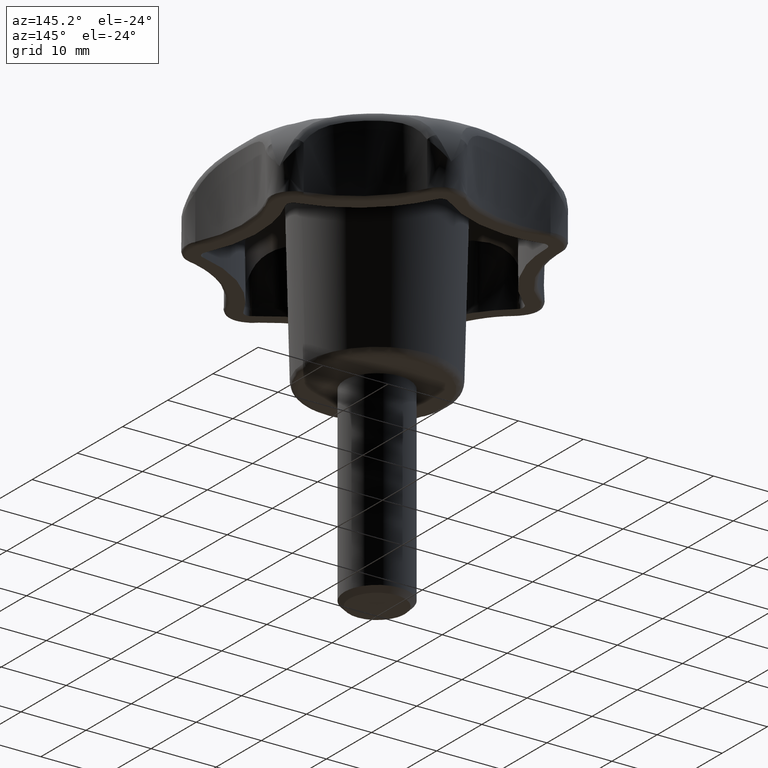
[diagram: clean part render]
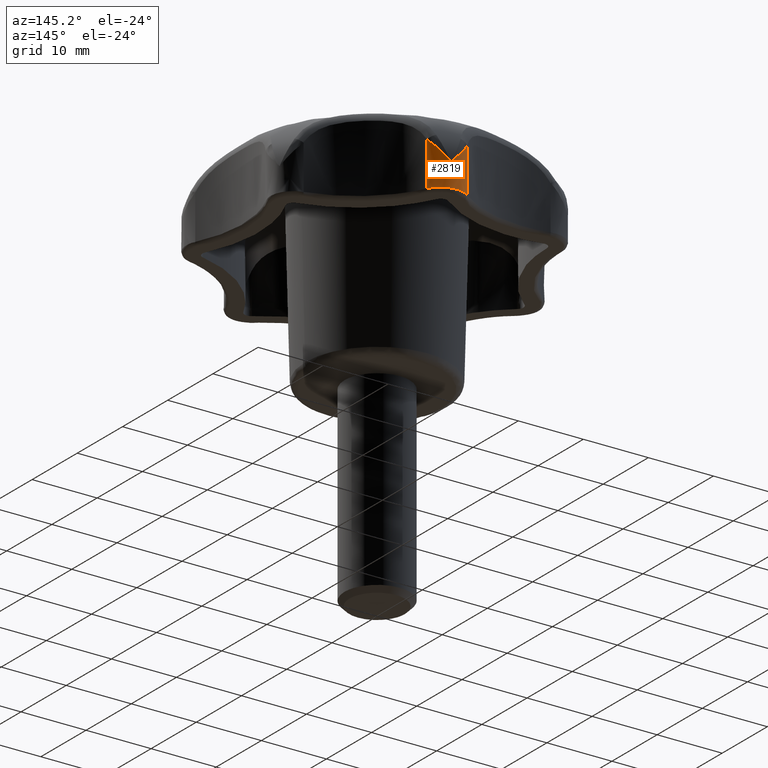
[diagram: same view with one face highlighted and labeled with its STEP entity id]
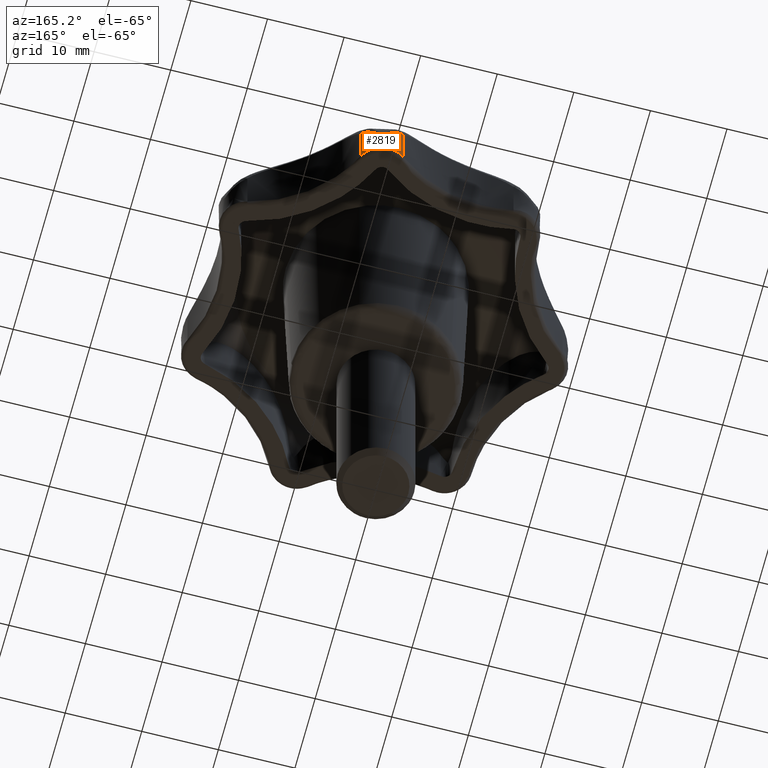
[diagram: same view with one face highlighted and labeled with its STEP entity id]
A machine part, auxiliary view. The second image highlights one B-rep face of the part: STEP entity #2819.
A second angle (auxiliary view) of the same face is appended — the face is thin or edge-on in the first view.
In plain terms, the highlighted face is a freeform B-spline surface patch.
Its self-contained STEP definition (entity closure, byte-faithful):
#1769=CARTESIAN_POINT('',(2.601986538722750,23.697360399521951,17.500000000000000));
#1770=VERTEX_POINT('',#1769);
#1781=CARTESIAN_POINT('',(7.937591030085770,22.479543102636299,17.500000000000000));
#1782=VERTEX_POINT('',#1781);
#1783=CARTESIAN_POINT('',(7.937591030085770,22.479543102636299,17.500000000000000));
#1784=CARTESIAN_POINT('',(7.809874285920594,22.744938801861291,17.499999999999961));
#1785=CARTESIAN_POINT('',(7.504796457622294,23.215450487545429,17.500000000000050));
#1786=CARTESIAN_POINT('',(6.918510721526632,23.769742143002979,17.500000000000000));
#1787=CARTESIAN_POINT('',(6.255233362051181,24.167312589810869,17.499999999999989));
#1788=CARTESIAN_POINT('',(5.583720452844248,24.391725097685740,17.499999999999979));
#1789=CARTESIAN_POINT('',(4.801797128210618,24.491027109026540,17.500000000000110));
#1790=CARTESIAN_POINT('',(4.045374229163240,24.416547279334502,17.499999999999989));
#1791=CARTESIAN_POINT('',(3.253921772806235,24.139478278780270,17.500000000000028));
#1792=CARTESIAN_POINT('',(2.819423822826879,23.870847091060309,17.499999999999901));
#1793=CARTESIAN_POINT('',(2.601986538722750,23.697360399521951,17.500000000000000));
#1794=B_SPLINE_CURVE_WITH_KNOTS('',3,(#1783,#1784,#1785,#1786,#1787,#1788,#1789,#1790,#1791,#1792,#1793),.UNSPECIFIED.,.F.,.U.,(4,1,1,1,1,1,1,1,4),(0.000000098999860,0.883564913585445,1.668987002221602,2.405319691033296,3.190683353082074,3.779751751514095,4.761515409871327,5.448750010219730,6.283235878183562),.UNSPECIFIED.);
#1795=EDGE_CURVE('',#1782,#1770,#1794,.T.);
#2344=CARTESIAN_POINT('',(2.601986538722750,23.697360399521951,24.301413341462101));
#2345=VERTEX_POINT('',#2344);
#2346=CARTESIAN_POINT('',(2.601986538722750,23.697360399521951,24.301413341462101));
#2347=CARTESIAN_POINT('',(2.601986538722750,23.697360399521951,17.500000000000000));
#2348=QUASI_UNIFORM_CURVE('',1,(#2346,#2347),.UNSPECIFIED.,.F.,.U.);
#2349=EDGE_CURVE('',#2345,#1770,#2348,.T.);
#2742=CARTESIAN_POINT('',(7.976262574885871,22.396476564718672,24.471449219359808));
#2743=CARTESIAN_POINT('',(7.976262574885871,22.396476564718672,17.325713769516010));
#2744=CARTESIAN_POINT('',(6.036259765057793,26.710301551746504,24.471449219359801));
#2745=CARTESIAN_POINT('',(6.036259765057793,26.710301551746504,17.325713769516014));
#2746=CARTESIAN_POINT('',(2.478130342247226,23.593827272793401,24.471449219359808));
#2747=CARTESIAN_POINT('',(2.478130342247226,23.593827272793401,17.325713769516010));
#2755=(BOUNDED_SURFACE()B_SPLINE_SURFACE(1,2,((#2742,#2744,#2746),(#2743,#2745,#2747)),.UNSPECIFIED.,.F.,.F.,.U.)B_SPLINE_SURFACE_WITH_KNOTS((2,2),(3,3),(0.0,7.145735449843798),(0.0,7.056580920545705),.UNSPECIFIED.)GEOMETRIC_REPRESENTATION_ITEM()RATIONAL_B_SPLINE_SURFACE(((1.0,0.594822786751341,1.0),(1.0,0.594822786751341,1.0)))REPRESENTATION_ITEM('')SURFACE());
#2756=CARTESIAN_POINT('',(7.937591030085770,22.479543102636299,24.301413872546149));
#2757=VERTEX_POINT('',#2756);
#2758=CARTESIAN_POINT('',(7.937591030085770,22.479543102636299,24.301413872546149));
#2759=CARTESIAN_POINT('',(7.937591030085770,22.479543102636299,17.500000000000000));
#2760=QUASI_UNIFORM_CURVE('',1,(#2758,#2759),.UNSPECIFIED.,.F.,.U.);
#2761=EDGE_CURVE('',#2757,#1782,#2760,.T.);
#2762=ORIENTED_EDGE('',*,*,#2761,.T.);
#2763=ORIENTED_EDGE('',*,*,#1795,.T.);
#2764=ORIENTED_EDGE('',*,*,#2349,.F.);
#2765=CARTESIAN_POINT('',(5.563023274532569,24.373197756430201,21.138975563360098));
#2766=VERTEX_POINT('',#2765);
#2767=CARTESIAN_POINT('',(2.601986538722750,23.697360399521951,24.301413341462101));
#2768=CARTESIAN_POINT('',(2.818101995668181,23.869707106981359,24.050993810107229));
#2769=CARTESIAN_POINT('',(3.047660271758878,24.011306753537720,23.797850352628309));
#2770=CARTESIAN_POINT('',(3.407023118558355,24.181345235856298,23.411182905682569));
#2771=CARTESIAN_POINT('',(3.529344795070935,24.230913251985069,23.281137250739700));
#2772=CARTESIAN_POINT('',(3.716182395310661,24.294666951053468,23.083959377450739));
#2773=CARTESIAN_POINT('',(3.779044267035961,24.314149002558221,23.017858534386921));
#2774=CARTESIAN_POINT('',(3.905081692326774,24.349376271793691,22.885661950685119));
#2775=CARTESIAN_POINT('',(3.968347347071946,24.365154580825308,22.819470921405099));
#2776=CARTESIAN_POINT('',(4.158774609110756,24.407069643604672,22.620529289855181));
#2777=CARTESIAN_POINT('',(4.286565160566292,24.427795958008371,22.487410538276290));
#2778=CARTESIAN_POINT('',(4.543281802581344,24.455033535367999,22.219711126107921));
#2779=CARTESIAN_POINT('',(4.672339582388967,24.461521493216988,22.084992660627702));
#2780=CARTESIAN_POINT('',(4.929346654295023,24.460299365367590,21.815416816743831));
#2781=CARTESIAN_POINT('',(5.057526404842056,24.452611651912719,21.680319408958368));
#2782=CARTESIAN_POINT('',(5.248406806897612,24.430620610329651,21.477408349770641));
#2783=CARTESIAN_POINT('',(5.311806614403294,24.421546405893238,21.409722302383280));
#2784=CARTESIAN_POINT('',(5.406432148491804,24.405344171606110,21.308169596715960));
#2785=CARTESIAN_POINT('',(5.437896978032893,24.399511332299401,21.274312316840181));
#2786=CARTESIAN_POINT('',(5.500652114057160,24.386985630774589,21.206595899723311));
#2787=CARTESIAN_POINT('',(5.532195519372139,24.380233925203999,21.172641328961230));
#2788=CARTESIAN_POINT('',(5.563023260411500,24.373197694561750,21.138975563360152));
#2789=B_SPLINE_CURVE_WITH_KNOTS('',3,(#2767,#2768,#2769,#2770,#2771,#2772,#2773,#2774,#2775,#2776,#2777,#2778,#2779,#2780,#2781,#2782,#2783,#2784,#2785,#2786,#2787,#2788),.UNSPECIFIED.,.F.,.U.,(4,2,2,2,2,2,2,2,2,2,4),(0.0,0.250000000000003,0.375000000000005,0.437500000000005,0.500000000000005,0.625000000000003,0.750000000000002,0.875000000000000,0.937499999999999,0.968750000000000,1.0),.UNSPECIFIED.);
#2790=EDGE_CURVE('',#2345,#2766,#2789,.T.);
#2791=ORIENTED_EDGE('',*,*,#2790,.T.);
#2792=CARTESIAN_POINT('',(5.563023274532569,24.373197756430201,21.138975563360098));
#2793=CARTESIAN_POINT('',(5.593851008256447,24.366161462366179,21.172641336395579));
#2794=CARTESIAN_POINT('',(5.625200096701994,24.358558366612531,21.206595914726339));
#2795=CARTESIAN_POINT('',(5.687175232500085,24.342615197061871,21.274312346859670));
#2796=CARTESIAN_POINT('',(5.718054845293626,24.334218323805100,21.308169634240841));
#2797=CARTESIAN_POINT('',(5.810339411894733,24.307759545405482,21.409722362415280));
#2798=CARTESIAN_POINT('',(5.871397827755102,24.288426970454019,21.477408424804459));
#2799=CARTESIAN_POINT('',(6.052916721935825,24.225420294211549,21.680319528849310));
#2800=CARTESIAN_POINT('',(6.171738285619480,24.176731560591961,21.815416966543829));
#2801=CARTESIAN_POINT('',(6.403823964453368,24.066321435637189,22.084992869346060));
#2802=CARTESIAN_POINT('',(6.517286009098590,24.004479895137020,22.219711364498021));
#2803=CARTESIAN_POINT('',(6.736761809891597,23.868554463485172,22.487410834851179));
#2804=CARTESIAN_POINT('',(6.842904325529999,23.794434431804849,22.620529614768419));
#2805=CARTESIAN_POINT('',(6.996287119396367,23.674046931093649,22.819471287937048));
#2806=CARTESIAN_POINT('',(7.046441560185988,23.632381212585749,22.885662330941539));
#2807=CARTESIAN_POINT('',(7.144712830357489,23.545956920286269,23.017858941833971));
#2808=CARTESIAN_POINT('',(7.192896480463865,23.501129438695639,23.083959798559491));
#2809=CARTESIAN_POINT('',(7.333569665901355,23.362623493559472,23.281137714530239));
#2810=CARTESIAN_POINT('',(7.422270940575720,23.264890832331581,23.411183396660061));
#2811=CARTESIAN_POINT('',(7.672268740325731,22.955769671014469,23.797850890981842));
#2812=CARTESIAN_POINT('',(7.817655835760567,22.728591078737221,24.050994436161499));
#2813=CARTESIAN_POINT('',(7.937590986891009,22.479543192331160,24.301413982437278));
#2814=B_SPLINE_CURVE_WITH_KNOTS('',3,(#2792,#2793,#2794,#2795,#2796,#2797,#2798,#2799,#2800,#2801,#2802,#2803,#2804,#2805,#2806,#2807,#2808,#2809,#2810,#2811,#2812,#2813),.UNSPECIFIED.,.F.,.U.,(4,2,2,2,2,2,2,2,2,2,4),(0.000000030012570,0.031250030012572,0.062500030012573,0.125000030012575,0.250000030012576,0.375000030012577,0.500000030012578,0.562500030012578,0.625000030012578,0.750000030012576,1.0),.UNSPECIFIED.);
#2815=EDGE_CURVE('',#2766,#2757,#2814,.T.);
#2816=ORIENTED_EDGE('',*,*,#2815,.T.);
#2817=EDGE_LOOP('',(#2762,#2763,#2764,#2791,#2816));
#2818=FACE_OUTER_BOUND('',#2817,.T.);
#2819=ADVANCED_FACE('',(#2818),#2755,.T.);